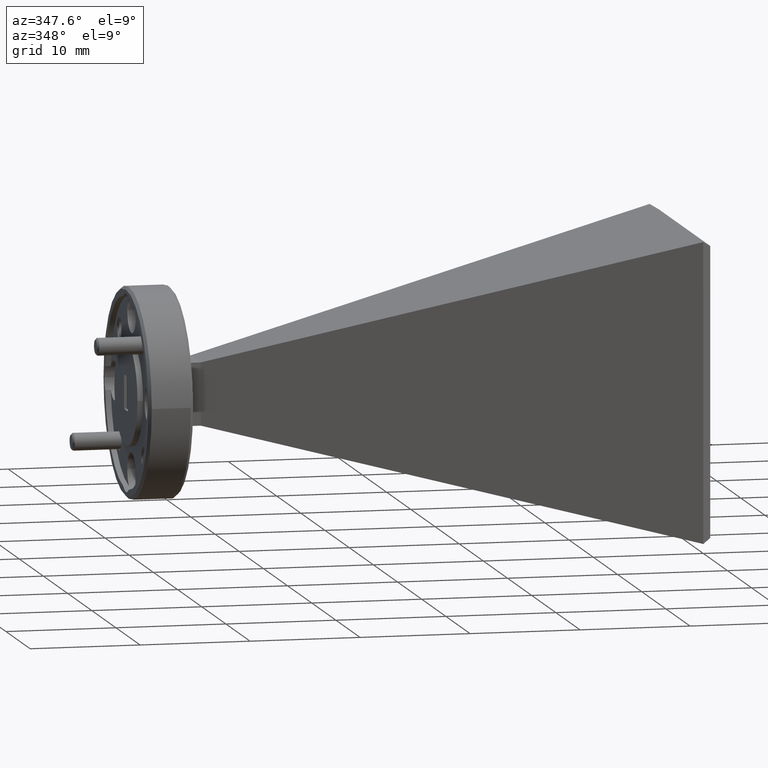
[diagram: clean part render]
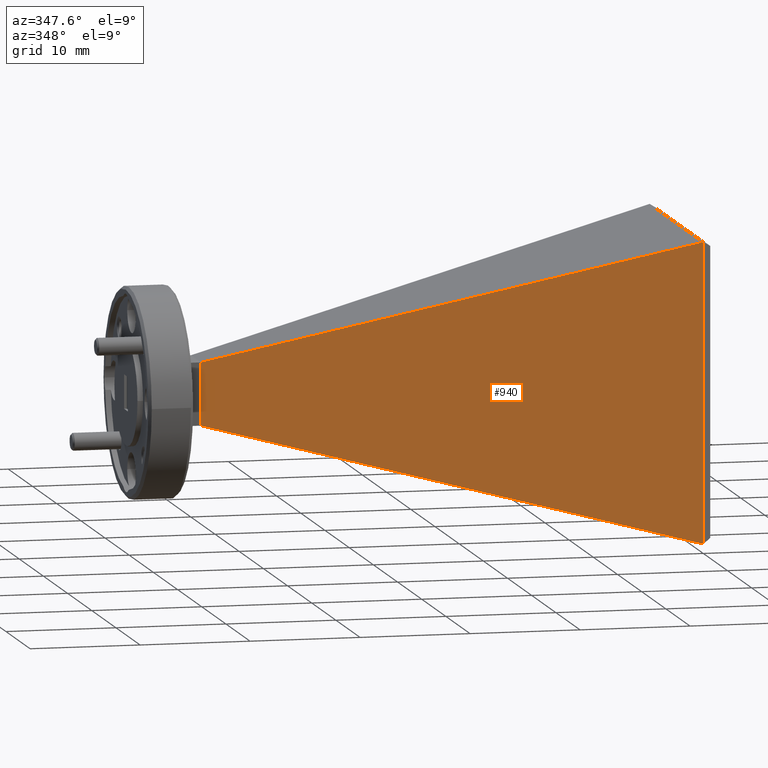
[diagram: same view with one face highlighted and labeled with its STEP entity id]
A machine part, auxiliary view. The second image highlights one B-rep face of the part: STEP entity #940.
In plain terms, the highlighted planar face has unit normal (-0.2023, -0.9793, 0).
Its self-contained STEP definition (entity closure, byte-faithful):
#32 = VERTEX_POINT ( 'NONE', #2587 ) ;
#145 = CARTESIAN_POINT ( 'NONE',  ( -5.270880454576202467, 0.3241933872041555809, 1.997983861534751604 ) ) ;
#175 = ORIENTED_EDGE ( 'NONE', *, *, #542, .T. ) ;
#235 = VERTEX_POINT ( 'NONE', #796 ) ;
#256 = FACE_OUTER_BOUND ( 'NONE', #1326, .T. ) ;
#542 = EDGE_CURVE ( 'NONE', #32, #235, #917, .T. ) ;
#796 = CARTESIAN_POINT ( 'NONE',  ( -3.550260160889565864, -0.03123760489167120083, 2.644273242185272821 ) ) ;
#818 = VERTEX_POINT ( 'NONE', #1643 ) ;
#874 = DIRECTION ( 'NONE',  ( -0.2023002634719816839, -0.9793235437786467212, 0.000000000000000000 ) ) ;
#917 = LINE ( 'NONE', #1961, #2645 ) ;
#940 = ADVANCED_FACE ( 'NONE', ( #256 ), #1066, .T. ) ;
#941 = CARTESIAN_POINT ( 'NONE',  ( -3.520880454576206464, -0.03730661279583069589, 1.568483861534751833 ) ) ;
#971 = DIRECTION ( 'NONE',  ( -0.9522052365154293208, 0.1966983960001801035, 0.2336983709047871505 ) ) ;
#989 = VECTOR ( 'NONE', #2346, 39.37007874015748143 ) ;
#1066 = PLANE ( 'NONE',  #1699 ) ;
#1070 = VECTOR ( 'NONE', #2159, 39.37007874015748854 ) ;
#1143 = LINE ( 'NONE', #941, #2021 ) ;
#1203 = EDGE_CURVE ( 'NONE', #818, #1386, #1896, .T. ) ;
#1278 = EDGE_CURVE ( 'NONE', #235, #818, #1366, .T. ) ;
#1326 = EDGE_LOOP ( 'NONE', ( #2286, #175, #2079, #2577 ) ) ;
#1366 = LINE ( 'NONE', #1379, #1070 ) ;
#1379 = CARTESIAN_POINT ( 'NONE',  ( -3.520880454576206464, -0.03730661279583069589, 2.651483861534751796 ) ) ;
#1386 = VERTEX_POINT ( 'NONE', #145 ) ;
#1643 = CARTESIAN_POINT ( 'NONE',  ( -5.270880454576203356, 0.3241933872041558584, 2.221983861534752247 ) ) ;
#1681 = DIRECTION ( 'NONE',  ( 0.9793235437786464992, -0.2023002634719816284, 0.000000000000000000 ) ) ;
#1699 = AXIS2_PLACEMENT_3D ( 'NONE', #1883, #874, #1681 ) ;
#1727 = DIRECTION ( 'NONE',  ( 0.000000000000000000, 0.000000000000000000, 1.000000000000000000 ) ) ;
#1749 = EDGE_CURVE ( 'NONE', #32, #1386, #1143, .T. ) ;
#1883 = CARTESIAN_POINT ( 'NONE',  ( -3.453621769434215061, -0.05120033546944714742, 2.109983861534752148 ) ) ;
#1896 = LINE ( 'NONE', #2304, #989 ) ;
#1961 = CARTESIAN_POINT ( 'NONE',  ( -3.550260160889565864, -0.03123760489167113491, 2.651483861534751796 ) ) ;
#2021 = VECTOR ( 'NONE', #971, 39.37007874015748854 ) ;
#2079 = ORIENTED_EDGE ( 'NONE', *, *, #1278, .T. ) ;
#2159 = DIRECTION ( 'NONE',  ( -0.9522052365154295428, 0.1966983960001801313, -0.2336983709047868174 ) ) ;
#2286 = ORIENTED_EDGE ( 'NONE', *, *, #1749, .F. ) ;
#2304 = CARTESIAN_POINT ( 'NONE',  ( -5.270880454576205132, 0.3241933872041560249, 2.109983861534752148 ) ) ;
#2346 = DIRECTION ( 'NONE',  ( 0.000000000000000000, -0.000000000000000000, -1.000000000000000000 ) ) ;
#2577 = ORIENTED_EDGE ( 'NONE', *, *, #1203, .T. ) ;
#2587 = CARTESIAN_POINT ( 'NONE',  ( -3.550260160889565864, -0.03123760489167113491, 1.575694480884230586 ) ) ;
#2645 = VECTOR ( 'NONE', #1727, 39.37007874015748143 ) ;